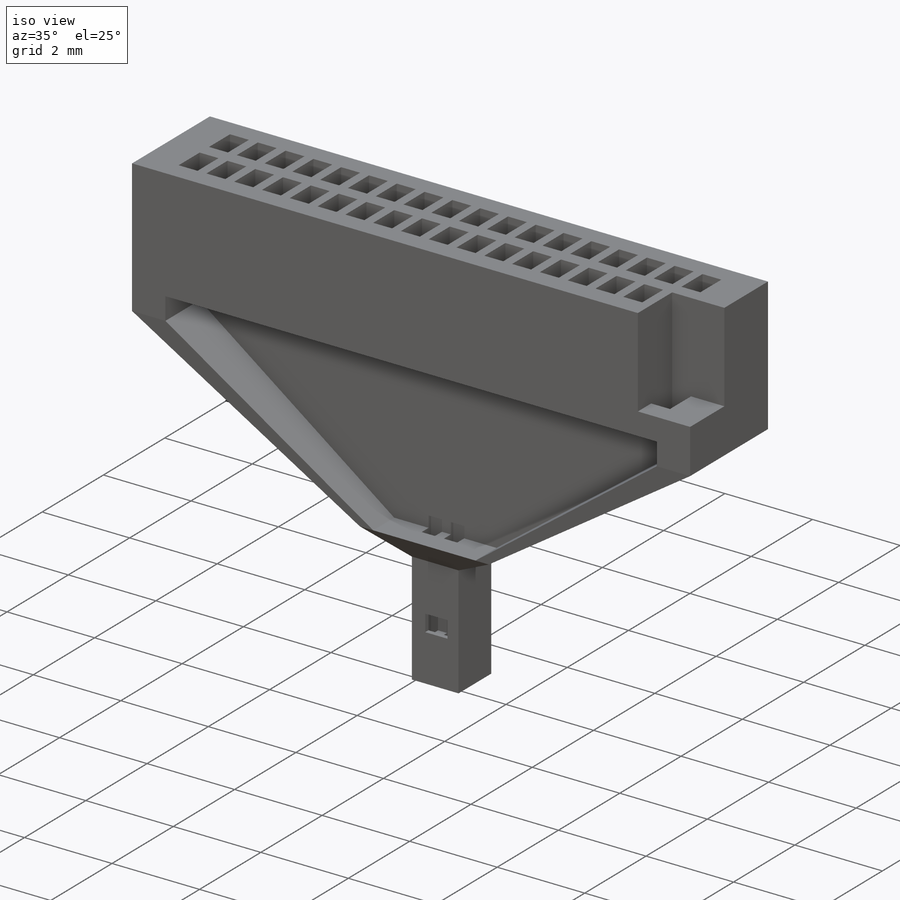
[diagram: iso view]
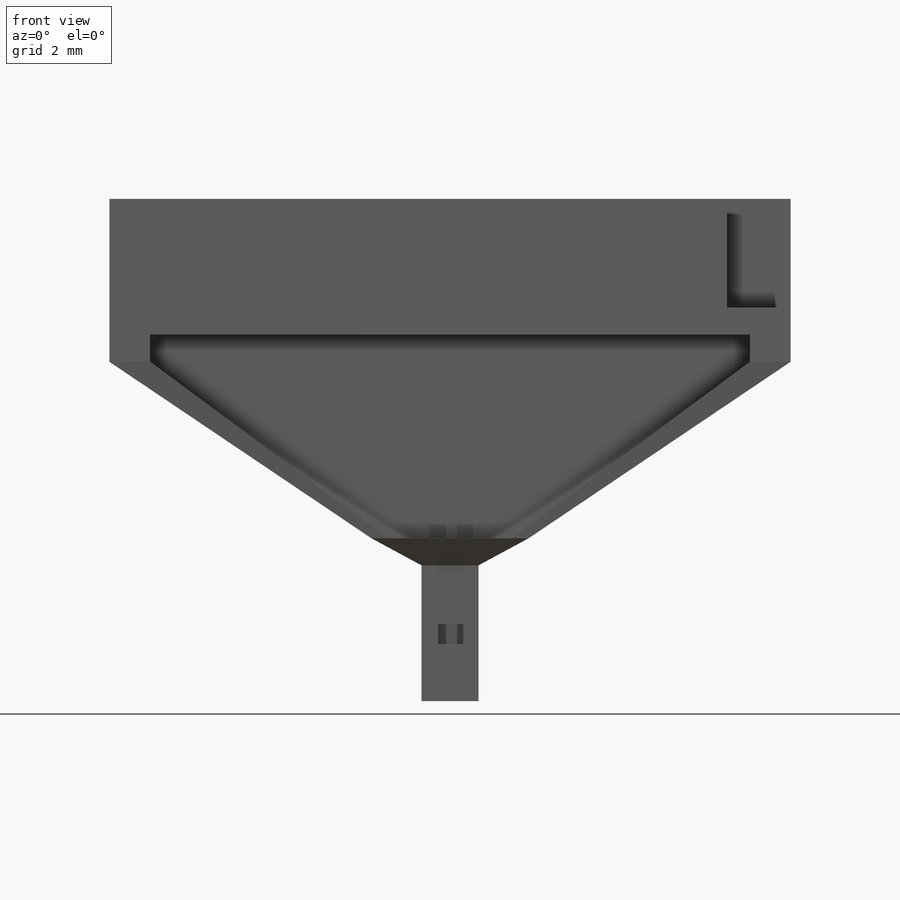
[diagram: front view]
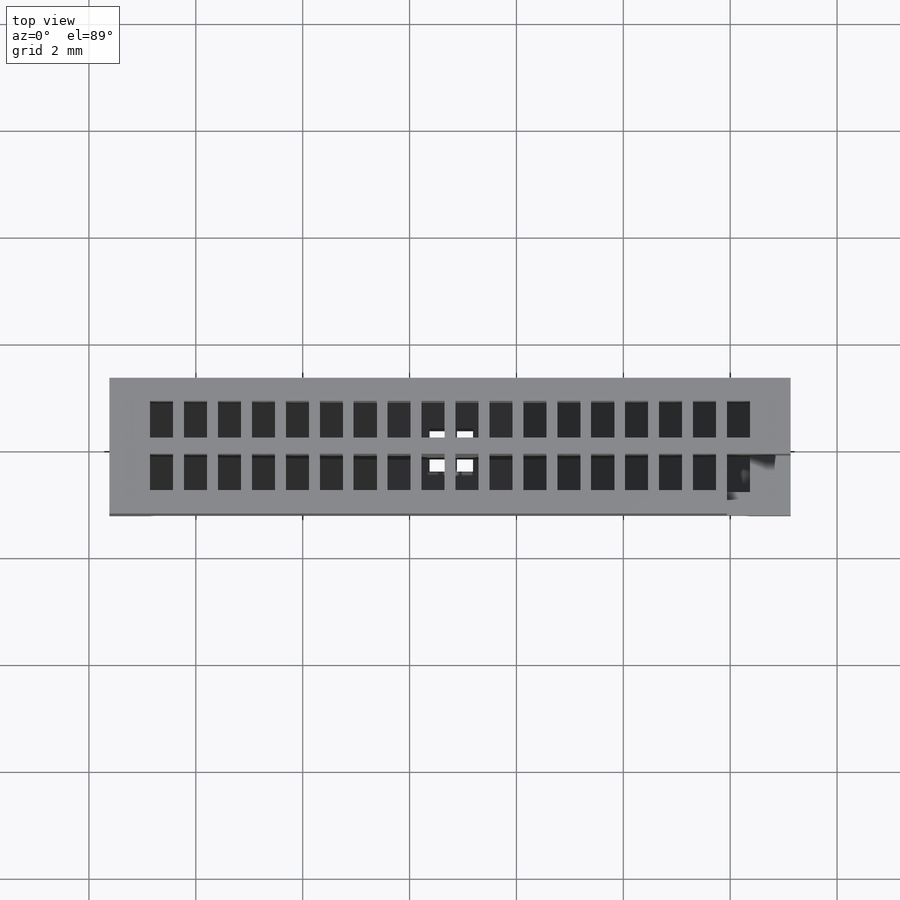
[diagram: top view]
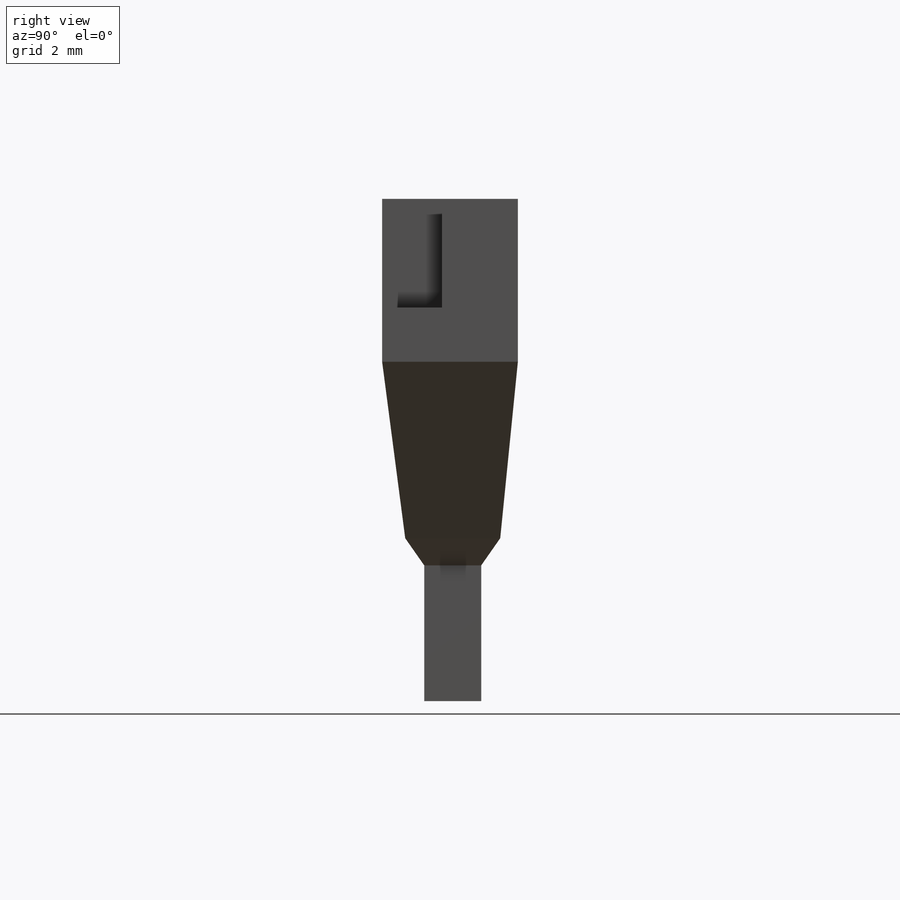
[diagram: right view]
SOLIDWORKS PART (.sldprt)
format: sldprt  version: not decoded by parser v0  size: 675,328 bytes
history: native  units: mm
features: sketch x16, extrude x8, cut_extrude x5, plane x2, material x1 (+12 scaffold rows collapsed)
feature tree (44):
  scaffold x12  (default folders/planes/origin — collapsed)
  material  "Material <not specified>"
  sketch  "main_block"  dims[D1=12.7508mm D2=2.54mm]
  sketch  "top_holes"  dims[D1=0.4318mm D2=0.6858mm D3=0.762mm D4=0.4318mm D7=0.6858mm D5=18.0 D6=2.0]
  extrude  "Boss-Extrude1"  Depth=2.54mm
  cut_extrude  "Cut-Extrude1"  Depth=2.54mm
  plane  "Plane1"  Offset=6.35mm
  sketch  "Sketch4"  dims[D1=~2.336683mm D2=1.778mm]
  sketch  "Sketch5"
  sketch  "Sketch6"
  sketch  "Sketch7"  dims[D1=0.3048mm]
  sketch  "Sketch8"  dims[D1=0.762mm D2=0.0mm D3=0.0mm]
  extrude  "Boss-Extrude3"  Depth=0.508mm
  sketch  "Sketch9"  dims[D1=0.3048mm]
  sketch  "Sketch10"  dims[D1=0.762mm D2=0.0mm D3=0.0mm]
  extrude  "Boss-Extrude2"  Depth=0.508mm
  extrude  "Loft14"  [1 undecoded]
  extrude  "Boss-Extrude5"  Depth=0.508mm
  extrude  "Loft15"  [1 undecoded]
  sketch  "Sketch12"  dims[c1.D1=2.54mm c1.D2=2.9464mm c2.D1=0.0mm c2.D3=0.0mm]
  plane  "Plane2"  Offset=0.508mm
  sketch  "Sketch13"  dims[D1=1.0668mm D2=1.0668mm]
  extrude  "Loft16"  [1 undecoded]
  extrude  "Boss-Extrude6"  [1 undecoded]
  sketch  "Sketch13<3>"  dims[D1=2.54mm]
  sketch  "Sketch14"  dims[D1=0.3048mm D2=0.3048mm D3=0.1524mm D4=0.1524mm D5=2.0 D6=2.0]
  cut_extrude  "Cut-Extrude2"  Depth=3.302mm
  sketch  "Sketch15"  dims[D1=0.1524mm D2=0.1524mm D3=0.381mm]
  cut_extrude  "Cut-Extrude3"  Depth=0.2032mm
  sketch  "Sketch16"
  cut_extrude  "Cut-Extrude4"  Depth=0.2032mm
  sketch  "Sketch17"
  cut_extrude  "Cut-Extrude5"  Depth=2.032mm
decode coverage: 21 of 29 modeling features carry decoded parameters
note: ~ marks probable driven/reference dimensions
note: 4 parameter values undecoded
summary: no parameter record found for 4 features
note: suppression state not decoded; provenance and decode notes live in map.json
